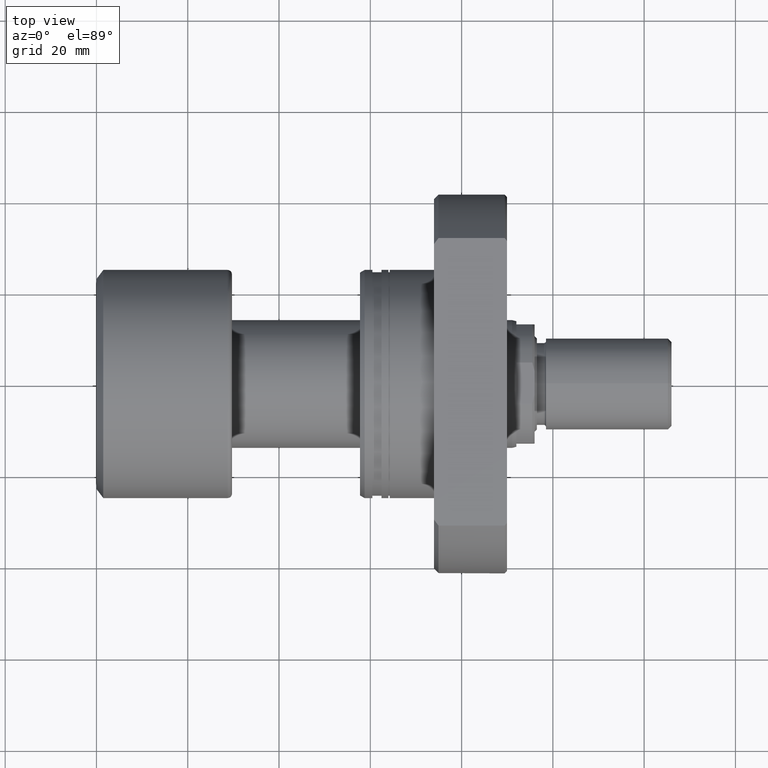
[diagram: clean part render]
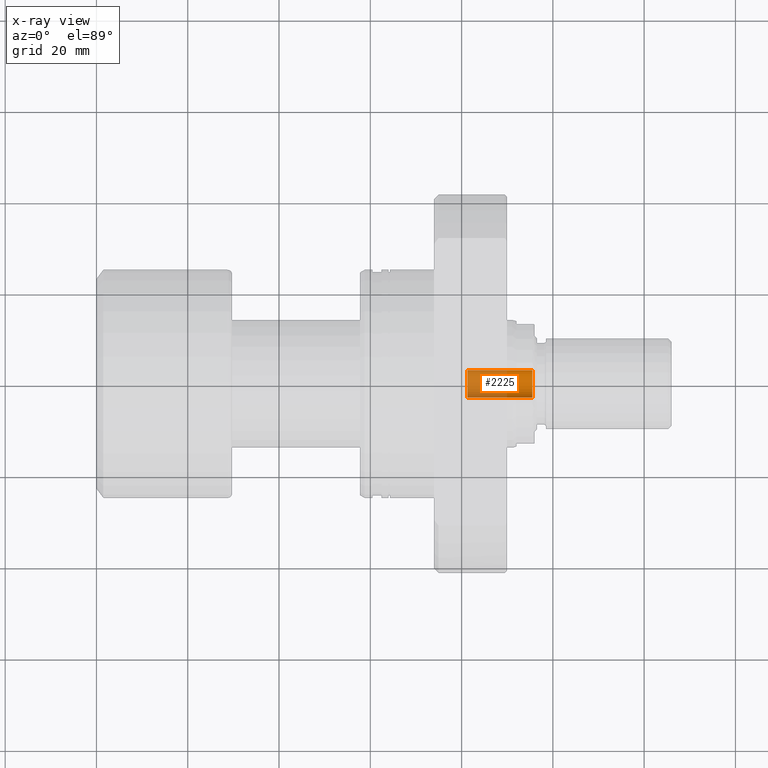
[diagram: x-ray — body ghosted, one internal face saturated and labeled with its STEP entity id]
A machine part, top view, then the same camera in x-ray: the body is ghosted and one INTERNAL B-rep face — a face not visible from any outside direction — is saturated and labeled: STEP entity #2225.
In plain terms, the highlighted cylindrical surface (edge-blend (fillet) strip) has radius 3 mm, axis along (1, -0, 0).
Its self-contained STEP definition (entity closure, byte-faithful):
#161 = ORIENTED_EDGE ( 'NONE', *, *, #1814, .T. ) ;
#197 = VERTEX_POINT ( 'NONE', #1771 ) ;
#234 = CARTESIAN_POINT ( 'NONE',  ( 81.30000000000005400, 2.999999999999118483, 0.000000000000000000 ) ) ;
#304 = AXIS2_PLACEMENT_3D ( 'NONE', #3544, #3278, #998 ) ;
#397 = CARTESIAN_POINT ( 'NONE',  ( 81.30000000000005400, 2.999999999999118483, 0.000000000000000000 ) ) ;
#401 = VERTEX_POINT ( 'NONE', #3121 ) ;
#427 = DIRECTION ( 'NONE',  ( 1.000000000000000000, -1.657264799492230625E-14, -0.000000000000000000 ) ) ;
#464 = LINE ( 'NONE', #2697, #1843 ) ;
#496 = CIRCLE ( 'NONE', #3642, 3.000000000000465850 ) ;
#859 = CARTESIAN_POINT ( 'NONE',  ( 95.50000000000011369, 2.999999999998883116, 0.000000000000000000 ) ) ;
#941 = VERTEX_POINT ( 'NONE', #859 ) ;
#998 = DIRECTION ( 'NONE',  ( 1.850371707708306983E-14, 1.000000000000000000, 0.000000000000000000 ) ) ;
#1163 = CARTESIAN_POINT ( 'NONE',  ( 95.50000000000005684, -1.582687883515081417E-12, 0.000000000000000000 ) ) ;
#1173 = EDGE_CURVE ( 'NONE', #3276, #941, #2057, .T. ) ;
#1517 = DIRECTION ( 'NONE',  ( 1.000000000000000000, -1.657264799492230625E-14, -0.000000000000000000 ) ) ;
#1636 = CARTESIAN_POINT ( 'NONE',  ( 81.29999999999999716, -1.347356281987183625E-12, 0.000000000000000000 ) ) ;
#1771 = CARTESIAN_POINT ( 'NONE',  ( 95.50000000000000000, -3.000000000002047695, 3.673940397442773787E-16 ) ) ;
#1814 = EDGE_CURVE ( 'NONE', #401, #197, #464, .T. ) ;
#1838 = EDGE_CURVE ( 'NONE', #401, #3276, #2840, .T. ) ;
#1843 = VECTOR ( 'NONE', #427, 1000.000000000000000 ) ;
#1916 = AXIS2_PLACEMENT_3D ( 'NONE', #1636, #2964, #2115 ) ;
#2057 = LINE ( 'NONE', #397, #3020 ) ;
#2093 = DIRECTION ( 'NONE',  ( -1.850371707708306983E-14, -1.000000000000000000, 0.000000000000000000 ) ) ;
#2115 = DIRECTION ( 'NONE',  ( 1.850371707708306983E-14, 1.000000000000000000, 0.000000000000000000 ) ) ;
#2225 = ADVANCED_FACE ( 'NONE', ( #3597 ), #3304, .F. ) ;
#2679 = ORIENTED_EDGE ( 'NONE', *, *, #1838, .F. ) ;
#2691 = ORIENTED_EDGE ( 'NONE', *, *, #2992, .T. ) ;
#2697 = CARTESIAN_POINT ( 'NONE',  ( 81.29999999999994031, -3.000000000001813216, 3.673940397442630313E-16 ) ) ;
#2840 = CIRCLE ( 'NONE', #304, 3.000000000000465850 ) ;
#2862 = DIRECTION ( 'NONE',  ( 1.000000000000000000, -1.657264799492261548E-14, 0.000000000000000000 ) ) ;
#2964 = DIRECTION ( 'NONE',  ( 1.000000000000000000, -1.657264799492230625E-14, -0.000000000000000000 ) ) ;
#2992 = EDGE_CURVE ( 'NONE', #197, #941, #496, .T. ) ;
#3020 = VECTOR ( 'NONE', #1517, 1000.000000000000000 ) ;
#3121 = CARTESIAN_POINT ( 'NONE',  ( 81.29999999999994031, -3.000000000001813216, 3.673940397442630313E-16 ) ) ;
#3276 = VERTEX_POINT ( 'NONE', #234 ) ;
#3278 = DIRECTION ( 'NONE',  ( 1.000000000000000000, -1.657264799492230625E-14, 0.000000000000000000 ) ) ;
#3304 = CYLINDRICAL_SURFACE ( 'NONE', #1916, 3.000000000000465850 ) ;
#3316 = EDGE_LOOP ( 'NONE', ( #2679, #161, #2691, #3479 ) ) ;
#3479 = ORIENTED_EDGE ( 'NONE', *, *, #1173, .F. ) ;
#3544 = CARTESIAN_POINT ( 'NONE',  ( 81.29999999999999716, -1.347356281987183625E-12, 0.000000000000000000 ) ) ;
#3597 = FACE_OUTER_BOUND ( 'NONE', #3316, .T. ) ;
#3642 = AXIS2_PLACEMENT_3D ( 'NONE', #1163, #2862, #2093 ) ;